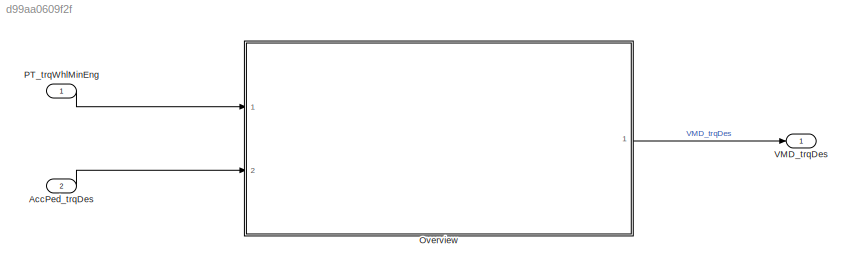
MODEL slx_d99aa0609f2f
KIND model
CONFIG AbsTol = auto
CONFIG EnableMultiTasking = off
CONFIG FixedStep = 0.001
CONFIG MaxStep = auto
CONFIG MinStep = auto
CONFIG RelTol = 1e-3
CONFIG SampleTimeConstraint = Unconstrained
CONFIG Solver = FixedStepDiscrete
CONFIG SolverName = FixedStepDiscrete
CONFIG StartTime = 0.0
CONFIG StopTime = Inf
BLOCK [Inport] AccPed_trqDes
  Description = Driver torque value of propulsion after step limitation
  IconDisplay = Port number
  OutDataTypeStr = Torq
  OutMax = 3000
  OutMin = -3000
  Port = 2
  PortDimensions = [1 1]
  Unit = Nm
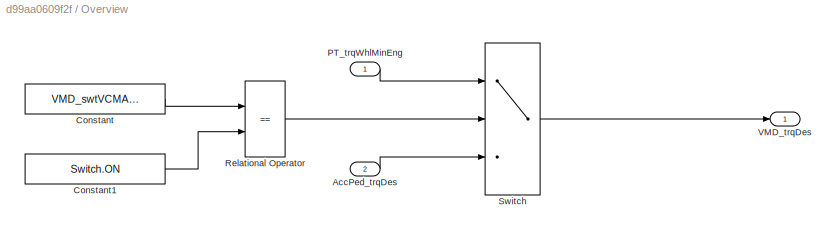
BLOCK [SubSystem] Overview
  Ports = [2, 1]
  RequestExecContextInheritance = off
BLOCK [Inport] Overview/AccPed_trqDes
  IconDisplay = Port number
  Port = 2
  Tag = Nm
BLOCK [Constant] Overview/Constant
  Value = VMD_swtVCMActv_C
BLOCK [Constant] Overview/Constant1
  Value = Switch.ON
BLOCK [Inport] Overview/PT_trqWhlMinEng
  IconDisplay = Port number
  Tag = Nm
BLOCK [RelationalOperator] Overview/Relational Operator
  InputSameDT = off
  Operator = ==
  OutDataTypeStr = boolean
  Ports = [2, 1]
  RndMeth = Simplest
BLOCK [Switch] Overview/Switch
  Criteria = u2 ~= 0
  InputSameDT = off
  SaturateOnIntegerOverflow = off
BLOCK [Outport] Overview/VMD_trqDes
  IconDisplay = Port number
  Tag = Nm
BLOCK [Inport] PT_trqWhlMinEng
  Description = Minimum wheel torque from the engine
  IconDisplay = Port number
  OutDataTypeStr = Torq
  OutMax = 3000
  OutMin = -3000
  PortDimensions = [1 1]
  Unit = Nm
BLOCK [Outport] VMD_trqDes
  IconDisplay = Port number
LINE AccPed_trqDes:1 -> Overview:2
LINE Overview/AccPed_trqDes:1 -> Overview/Switch:3
LINE Overview/Constant1:1 -> Overview/Relational Operator:2
LINE Overview/Constant:1 -> Overview/Relational Operator:1
LINE Overview/PT_trqWhlMinEng:1 -> Overview/Switch:1
LINE Overview/Relational Operator:1 -> Overview/Switch:2
LINE Overview/Switch:1 -> Overview/VMD_trqDes:1
LINE Overview:1 -> VMD_trqDes:1
LINE PT_trqWhlMinEng:1 -> Overview:1
